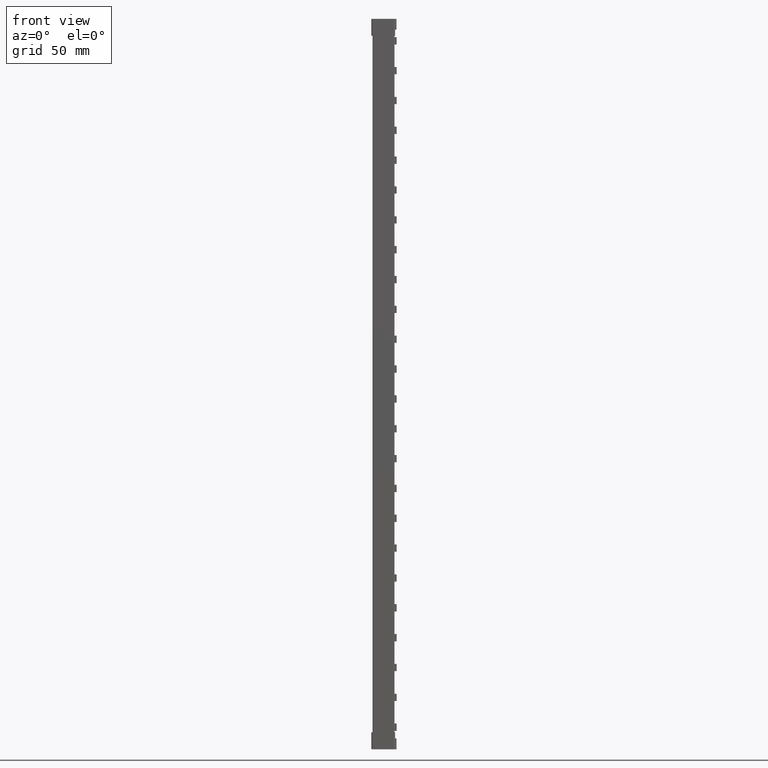
[diagram: clean part render]
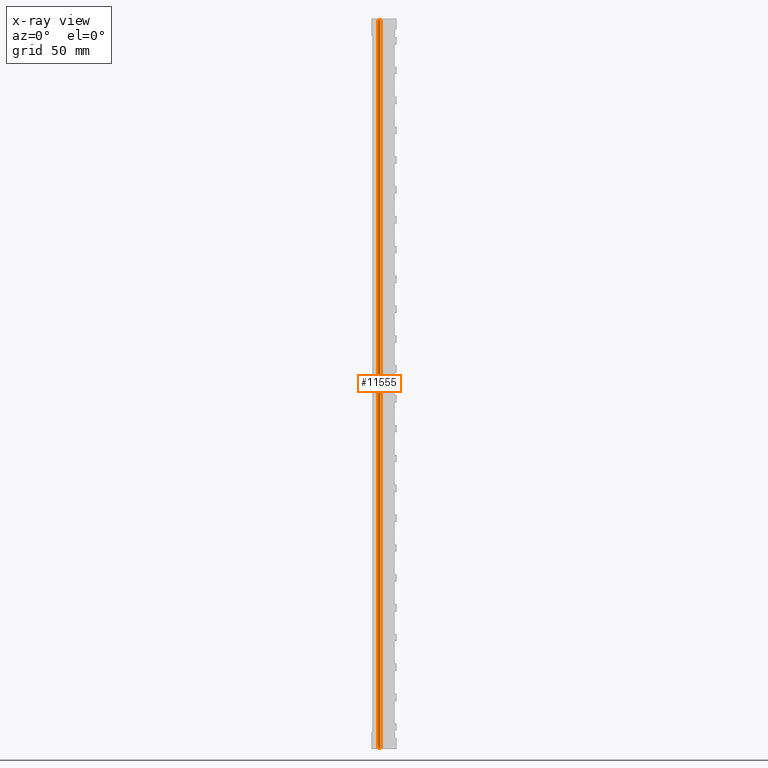
[diagram: x-ray — body ghosted, one internal face saturated and labeled with its STEP entity id]
A machine part, front view, then the same camera in x-ray: the body is ghosted and one INTERNAL B-rep face — a face not visible from any outside direction — is saturated and labeled: STEP entity #11555.
In plain terms, the highlighted cylindrical surface (edge-blend (fillet) strip) has radius 1.8 mm, axis along (0, 0, 1).
Its self-contained STEP definition (entity closure, byte-faithful):
#1045 = B_SPLINE_CURVE_WITH_KNOTS ( 'NONE', 3,
 ( #14420, #14445, #14428, #14416 ),
 .UNSPECIFIED., .F., .F.,
 ( 4, 4 ),
 ( 0.0000000000000000000, 1.000000000000000000 ),
 .UNSPECIFIED. ) ;
#1046 = B_SPLINE_CURVE_WITH_KNOTS ( 'NONE', 3,
 ( #14549, #14507, #14567, #14568 ),
 .UNSPECIFIED., .F., .F.,
 ( 4, 4 ),
 ( 0.0000000000000000000, 1.000000000000000000 ),
 .UNSPECIFIED. ) ;
#1047 = B_SPLINE_CURVE_WITH_KNOTS ( 'NONE', 3,
 ( #14448, #14419, #14424, #14439, #14453, #14444 ),
 .UNSPECIFIED., .F., .F.,
 ( 4, 2, 4 ),
 ( 0.0000000000000000000, 0.5000000000000000000, 1.000000000000000000 ),
 .UNSPECIFIED. ) ;
#1055 = B_SPLINE_CURVE_WITH_KNOTS ( 'NONE', 3,
 ( #14476, #14477, #14484, #14465, #14488, #14489 ),
 .UNSPECIFIED., .F., .F.,
 ( 4, 2, 4 ),
 ( 0.0000000000000000000, 0.5000000000000000000, 1.000000000000000000 ),
 .UNSPECIFIED. ) ;
#1079 = CARTESIAN_POINT ( 'NONE',  ( 2.698998958723018800, 5.096701968994310100, 209.9000000000000100 ) ) ;
#1107 = CARTESIAN_POINT ( 'NONE',  ( 4.023631279084801400, 5.048082173105153300, -209.9999999999999100 ) ) ;
#1112 = CARTESIAN_POINT ( 'NONE',  ( 4.023631279084796100, 5.048082173105156800, 219.0000000000000000 ) ) ;
#1132 = CARTESIAN_POINT ( 'NONE',  ( 2.699069105447883500, 5.096726809383278900, -209.9999999999999700 ) ) ;
#1161 = CARTESIAN_POINT ( 'NONE',  ( 2.699069105447910600, 5.096726809383287800, 219.0000000000000000 ) ) ;
#1621 = CARTESIAN_POINT ( 'NONE',  ( 2.698998958767310400, 5.096701968602043400, -200.9000000000003500 ) ) ;
#11267 = EDGE_CURVE ( 'NONE', #30802, #30828, #36048, .T. ) ;
#11384 = EDGE_CURVE ( 'NONE', #30889, #30884, #1047, .T. ) ;
#11386 = EDGE_CURVE ( 'NONE', #30828, #30889, #1045, .T. ) ;
#11438 = EDGE_CURVE ( 'NONE', #30876, #30916, #1055, .T. ) ;
#11494 = EDGE_CURVE ( 'NONE', #30916, #30802, #1046, .T. ) ;
#11507 = EDGE_CURVE ( 'NONE', #30884, #30876, #14585, .T. ) ;
#11555 = ADVANCED_FACE ( 'NONE', ( #14651 ), #14697, .T. ) ;
#14416 = CARTESIAN_POINT ( 'NONE',  ( 2.699069105447910600, 5.096726809383287800, 219.0000000000000000 ) ) ;
#14419 = CARTESIAN_POINT ( 'NONE',  ( 2.912324085630461700, 5.172235659307530900, 218.9999999999999400 ) ) ;
#14420 = CARTESIAN_POINT ( 'NONE',  ( 2.698998958723018800, 5.096701968994310100, 209.9000000000000100 ) ) ;
#14424 = CARTESIAN_POINT ( 'NONE',  ( 3.139909177008497900, 5.207046091925357200, 219.0000000000000300 ) ) ;
#14428 = CARTESIAN_POINT ( 'NONE',  ( 2.699045723549681400, 5.096718528196693600, 215.9666666666666700 ) ) ;
#14439 = CARTESIAN_POINT ( 'NONE',  ( 3.592060499824420500, 5.190424622863360100, 218.9999999999999700 ) ) ;
#14444 = CARTESIAN_POINT ( 'NONE',  ( 4.023631279084796100, 5.048082173105156800, 219.0000000000000000 ) ) ;
#14445 = CARTESIAN_POINT ( 'NONE',  ( 2.699022341137926600, 5.096710248460079000, 212.9333333333333400 ) ) ;
#14448 = CARTESIAN_POINT ( 'NONE',  ( 2.699069105447910600, 5.096726809383287800, 219.0000000000000000 ) ) ;
#14453 = CARTESIAN_POINT ( 'NONE',  ( 3.816475453716361000, 5.138998282275421700, 219.0000000000000300 ) ) ;
#14465 = CARTESIAN_POINT ( 'NONE',  ( 3.139909177008440600, 5.207046091925352700, -209.9999999999999700 ) ) ;
#14476 = CARTESIAN_POINT ( 'NONE',  ( 4.023631279084801400, 5.048082173105153300, -209.9999999999999100 ) ) ;
#14477 = CARTESIAN_POINT ( 'NONE',  ( 3.816475453716347700, 5.138998282275427900, -209.9999999999999400 ) ) ;
#14484 = CARTESIAN_POINT ( 'NONE',  ( 3.592060499824392600, 5.190424622863367300, -210.0000000000000000 ) ) ;
#14488 = CARTESIAN_POINT ( 'NONE',  ( 2.912324085630392900, 5.172235659307520300, -209.9999999999999700 ) ) ;
#14489 = CARTESIAN_POINT ( 'NONE',  ( 2.699069105447883500, 5.096726809383278900, -209.9999999999999700 ) ) ;
#14507 = CARTESIAN_POINT ( 'NONE',  ( 2.699045723604641000, 5.096718528216154500, -206.9666666666667300 ) ) ;
#14549 = CARTESIAN_POINT ( 'NONE',  ( 2.699069105447883500, 5.096726809383278900, -209.9999999999999700 ) ) ;
#14567 = CARTESIAN_POINT ( 'NONE',  ( 2.699022341247846200, 5.096710248499001700, -203.9333333333335100 ) ) ;
#14568 = CARTESIAN_POINT ( 'NONE',  ( 2.698998958767310400, 5.096701968602043400, -200.9000000000003500 ) ) ;
#14585 = LINE ( 'NONE', #14591, #30021 ) ;
#14591 = CARTESIAN_POINT ( 'NONE',  ( 4.023610794510737800, 5.048035522953489900, 219.0000000000000000 ) ) ;
#14592 = DIRECTION ( 'NONE',  ( -3.755450426763440500E-019, -8.551702964775421900E-019, -1.000000000000000000 ) ) ;
#14651 = FACE_OUTER_BOUND ( 'NONE', #32938, .T. ) ;
#14657 = DIRECTION ( 'NONE',  ( 1.174935236590071400E-018, 5.041208906165829300E-019, 1.000000000000000000 ) ) ;
#14663 = CARTESIAN_POINT ( 'NONE',  ( 3.299859964215051900, 3.399950350504472100, 219.0101000000001100 ) ) ;
#14668 = DIRECTION ( 'NONE',  ( 1.000000000000000000, 0.0000000000000000000, 0.0000000000000000000 ) ) ;
#14697 = CYLINDRICAL_SURFACE ( 'NONE', #30077, 1.799999999999999600 ) ;
#18195 = ORIENTED_EDGE ( 'NONE', *, *, #11438, .T. ) ;
#18202 = ORIENTED_EDGE ( 'NONE', *, *, #11384, .T. ) ;
#18212 = ORIENTED_EDGE ( 'NONE', *, *, #11494, .T. ) ;
#18249 = ORIENTED_EDGE ( 'NONE', *, *, #11507, .T. ) ;
#18251 = ORIENTED_EDGE ( 'NONE', *, *, #11386, .T. ) ;
#18319 = ORIENTED_EDGE ( 'NONE', *, *, #11267, .T. ) ;
#29853 = VECTOR ( 'NONE', #36066, 1000.000000000000000 ) ;
#30021 = VECTOR ( 'NONE', #14592, 1000.000000000000000 ) ;
#30077 = AXIS2_PLACEMENT_3D ( 'NONE', #14663, #14657, #14668 ) ;
#30802 = VERTEX_POINT ( 'NONE', #1621 ) ;
#30828 = VERTEX_POINT ( 'NONE', #1079 ) ;
#30876 = VERTEX_POINT ( 'NONE', #1107 ) ;
#30884 = VERTEX_POINT ( 'NONE', #1112 ) ;
#30889 = VERTEX_POINT ( 'NONE', #1161 ) ;
#30916 = VERTEX_POINT ( 'NONE', #1132 ) ;
#32938 = EDGE_LOOP ( 'NONE', ( #18249, #18195, #18212, #18319, #18251, #18202 ) ) ;
#36033 = CARTESIAN_POINT ( 'NONE',  ( 2.698998959062210100, 5.096701968298519100, 219.0101000000001100 ) ) ;
#36048 = LINE ( 'NONE', #36033, #29853 ) ;
#36066 = DIRECTION ( 'NONE',  ( 1.174935236590071400E-018, 5.041208906165829300E-019, 1.000000000000000000 ) ) ;